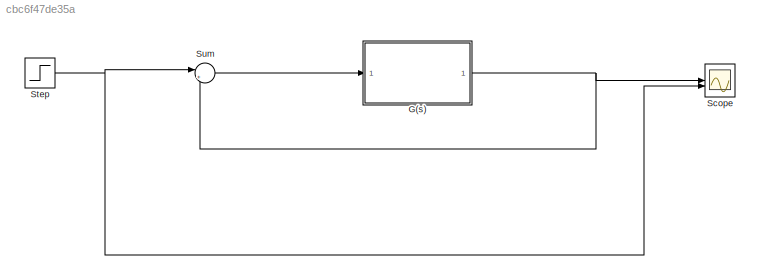
MODEL slx_cbc6f47de35a
KIND model
CONFIG AbsTol = auto
CONFIG EnableMultiTasking = off
CONFIG FixedStep = auto
CONFIG MaxStep = auto
CONFIG MinStep = auto
CONFIG RelTol = 1e-3
CONFIG SampleTimeConstraint = Unconstrained
CONFIG SolverName = VariableStepAuto
CONFIG StartTime = 0.0
CONFIG StopTime = 100000
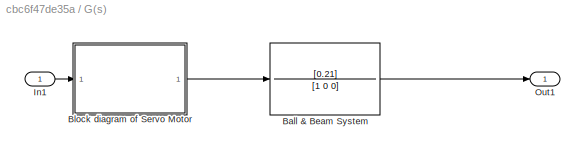
BLOCK [SubSystem] G(s)
BLOCK [TransferFcn] G(s)/Ball & Beam System
  Denominator = [1 0 0]
  Numerator = [0.21]
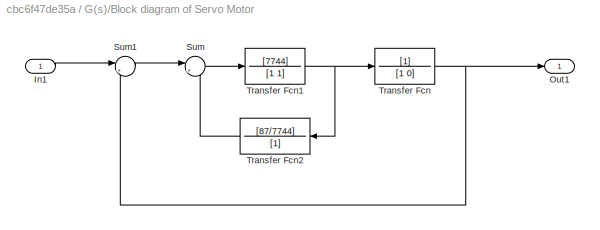
BLOCK [SubSystem] G(s)/Block diagram of Servo Motor
BLOCK [Inport] G(s)/Block diagram of Servo Motor/In1
BLOCK [Outport] G(s)/Block diagram of Servo Motor/Out1
BLOCK [Sum] G(s)/Block diagram of Servo Motor/Sum
  Inputs = |+-
BLOCK [Sum] G(s)/Block diagram of Servo Motor/Sum1
  Inputs = |+-
BLOCK [TransferFcn] G(s)/Block diagram of Servo Motor/Transfer Fcn
  Denominator = [1 0]
BLOCK [TransferFcn] G(s)/Block diagram of Servo Motor/Transfer Fcn1
  Denominator = [1 1]
  Numerator = [7744]
BLOCK [TransferFcn] G(s)/Block diagram of Servo Motor/Transfer Fcn2
  Denominator = [1]
  NameLocation = top
  Numerator = [87/7744]
BLOCK [Inport] G(s)/In1
BLOCK [Outport] G(s)/Out1
BLOCK [Scope] Scope
  Floating = off
  NumInputPorts = 2
  ScopeSpecificationString = Simulink.scopes.TimeScopeBlockCfg('CurrentConfiguration', extmgr.ConfigurationSet(extmgr.Configuration('Core','General UI',true),extmgr.Configuration('Core','Source UI',true),extmgr.Configuration('Sources','WiredSimulink',true),extmgr.Configuration('Visuals','Time Domain',true,'SerializedDisplays',{struct('MinYLimReal','-7581258631860562362414506857116993920585355224940544.00000','MaxYLimReal','76...<+1903ch>
BLOCK [Step] Step
  SampleTime = 0
BLOCK [Sum] Sum
  Inputs = |+-
LINE G(s)/Ball & Beam System:1 -> G(s)/Out1:1
LINE G(s)/Block diagram of Servo Motor/In1:1 -> G(s)/Block diagram of Servo Motor/Sum1:1
LINE G(s)/Block diagram of Servo Motor/Sum1:1 -> G(s)/Block diagram of Servo Motor/Sum:1
LINE G(s)/Block diagram of Servo Motor/Sum:1 -> G(s)/Block diagram of Servo Motor/Transfer Fcn1:1
NET G(s)/Block diagram of Servo Motor/Transfer Fcn1:1 -> G(s)/Block diagram of Servo Motor/Transfer Fcn2:1, G(s)/Block diagram of Servo Motor/Transfer Fcn:1
LINE G(s)/Block diagram of Servo Motor/Transfer Fcn2:1 -> G(s)/Block diagram of Servo Motor/Sum:2
NET G(s)/Block diagram of Servo Motor/Transfer Fcn:1 -> G(s)/Block diagram of Servo Motor/Out1:1, G(s)/Block diagram of Servo Motor/Sum1:2
LINE G(s)/Block diagram of Servo Motor:1 -> G(s)/Ball & Beam System:1
LINE G(s)/In1:1 -> G(s)/Block diagram of Servo Motor:1
NET G(s):1 -> Scope:1, Sum:2
NET Step:1 -> Scope:2, Sum:1
LINE Sum:1 -> G(s):1
note: NET lines group one-source signal fan-out (src -> all destinations, sorted); 1:1 wires keep LINE
